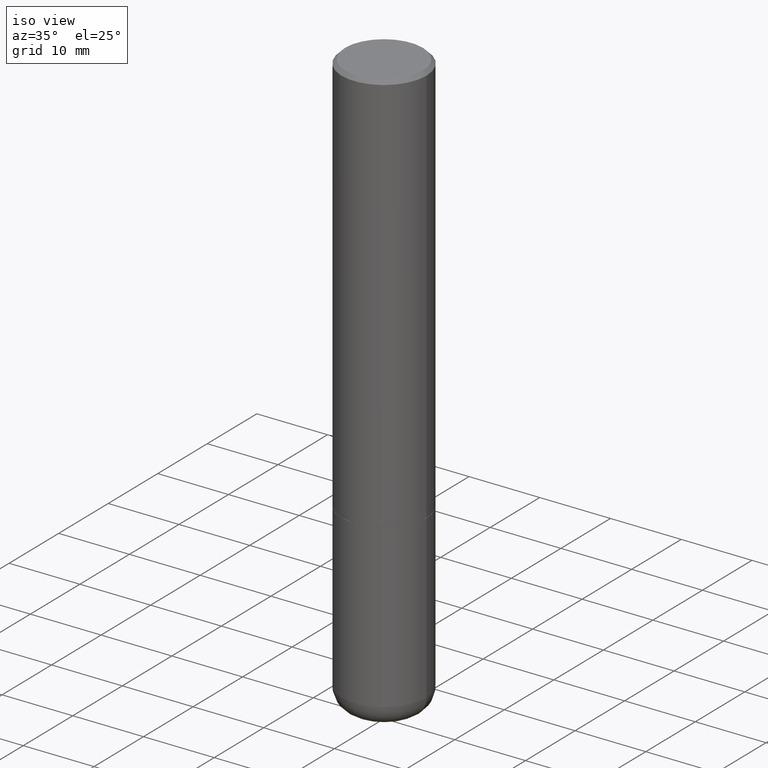
[diagram: clean part render]
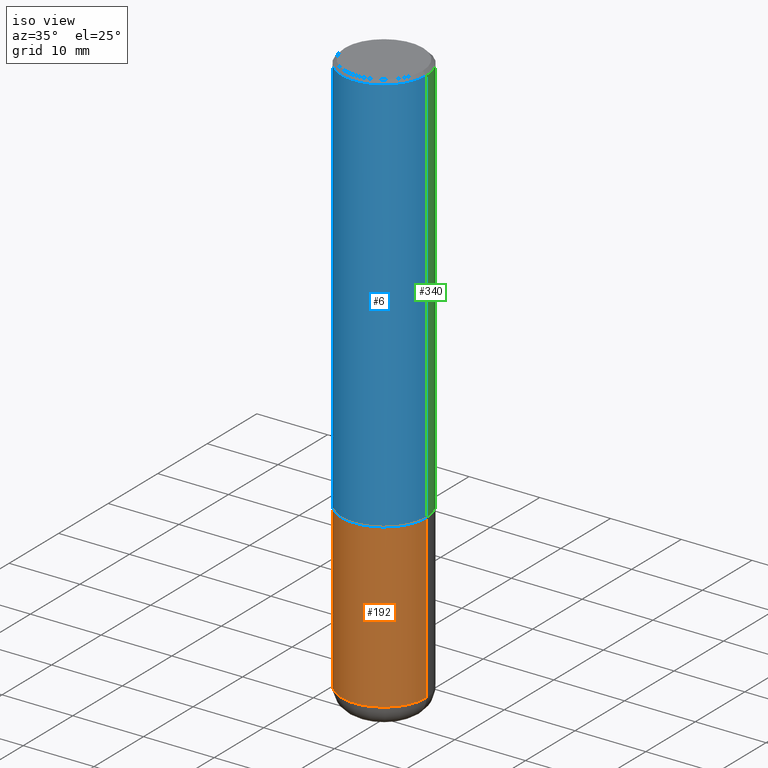
[diagram: same view with three faces highlighted in distinct colors, each labeled with its STEP entity id]
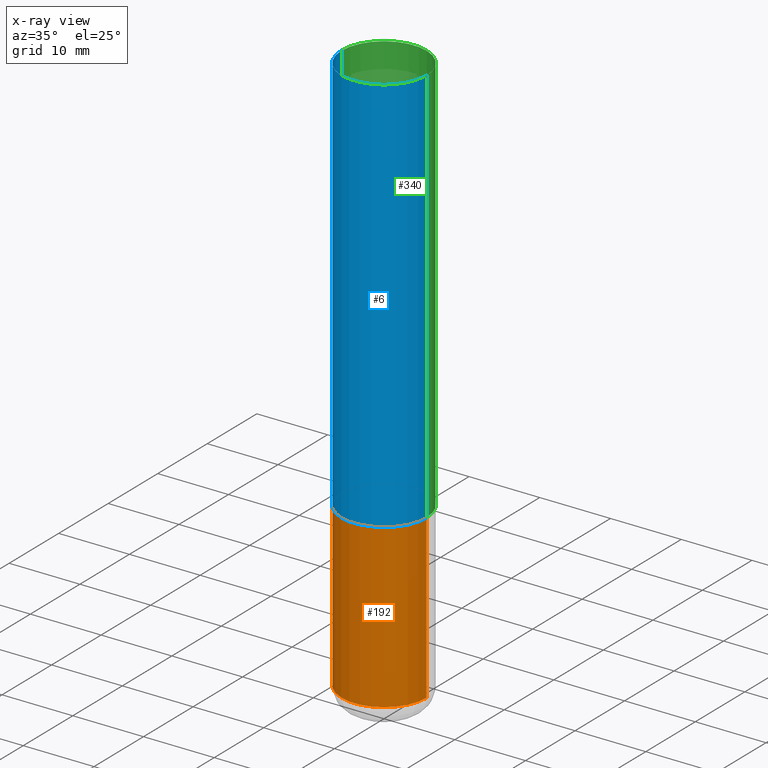
[diagram: x-ray of the same camera — body ghosted, the three highlighted faces saturated]
A machine part, iso view with three faces highlighted in distinct colors.
The next image is the same camera in x-ray (body ghosted, the three faces saturated) — at least one of them is partly hidden behind the body in this view.
Their STEP definitions:

[orange] entity #192 — the highlighted cylindrical surface (partial cylindrical patch) has radius 5.9995 mm, axis along (-0, 0, 1).
#5 = CARTESIAN_POINT ( 'NONE',  ( 0.2362000000000000210, -1.264614540928986883E-14, -3.149600000000000399 ) ) ;
#21 = VECTOR ( 'NONE', #407, 39.37007874015748143 ) ;
#61 = DIRECTION ( 'NONE',  ( -2.445468806185136877E-29, 3.491481338843145188E-15, 1.000000000000000000 ) ) ;
#67 = CYLINDRICAL_SURFACE ( 'NONE', #143, 0.2361999999999999933 ) ;
#75 = CARTESIAN_POINT ( 'NONE',  ( -0.2362000000000000210, -9.318467682955017493E-15, -3.149600000000000399 ) ) ;
#77 = CARTESIAN_POINT ( 'NONE',  ( 5.487876547960065873E-29, -7.835233272497903917E-15, -2.244100000000000428 ) ) ;
#87 = DIRECTION ( 'NONE',  ( -2.445468806185136597E-29, 3.491481338843145583E-15, 1.000000000000000000 ) ) ;
#111 = EDGE_CURVE ( 'NONE', #171, #323, #118, .T. ) ;
#112 = CIRCLE ( 'NONE', #221, 0.2362000000000000210 ) ;
#118 = CIRCLE ( 'NONE', #279, 0.2361999999999999933 ) ;
#131 = VERTEX_POINT ( 'NONE', #75 ) ;
#143 = AXIS2_PLACEMENT_3D ( 'NONE', #197, #329, #215 ) ;
#163 = ORIENTED_EDGE ( 'NONE', *, *, #111, .F. ) ;
#171 = VERTEX_POINT ( 'NONE', #402 ) ;
#174 = ORIENTED_EDGE ( 'NONE', *, *, #309, .T. ) ;
#192 = ADVANCED_FACE ( 'NONE', ( #258 ), #67, .T. ) ;
#197 = CARTESIAN_POINT ( 'NONE',  ( 0.000000000000000000, 0.000000000000000000, 0.000000000000000000 ) ) ;
#215 = DIRECTION ( 'NONE',  ( 1.000000000000000000, -6.982962677686266711E-15, 4.876176775795936353E-29 ) ) ;
#218 = DIRECTION ( 'NONE',  ( -2.445468806185136597E-29, 3.491481338843145583E-15, 1.000000000000000000 ) ) ;
#219 = EDGE_CURVE ( 'NONE', #131, #171, #384, .T. ) ;
#221 = AXIS2_PLACEMENT_3D ( 'NONE', #222, #218, #410 ) ;
#222 = CARTESIAN_POINT ( 'NONE',  ( 7.702248551960706711E-29, -1.099676962482037231E-14, -3.149600000000000399 ) ) ;
#256 = VECTOR ( 'NONE', #61, 39.37007874015748143 ) ;
#258 = FACE_OUTER_BOUND ( 'NONE', #331, .T. ) ;
#267 = ORIENTED_EDGE ( 'NONE', *, *, #285, .T. ) ;
#277 = DIRECTION ( 'NONE',  ( 1.000000000000000000, -6.982962677686269077E-15, 0.000000000000000000 ) ) ;
#279 = AXIS2_PLACEMENT_3D ( 'NONE', #77, #87, #277 ) ;
#284 = CARTESIAN_POINT ( 'NONE',  ( -0.2361999999999999933, 1.678301941865356591E-15, -1.161852468318208757E-29 ) ) ;
#285 = EDGE_CURVE ( 'NONE', #388, #323, #321, .T. ) ;
#309 = EDGE_CURVE ( 'NONE', #131, #388, #112, .T. ) ;
#321 = LINE ( 'NONE', #349, #256 ) ;
#323 = VERTEX_POINT ( 'NONE', #377 ) ;
#329 = DIRECTION ( 'NONE',  ( -2.445468806185136597E-29, 3.491481338843145583E-15, 1.000000000000000000 ) ) ;
#331 = EDGE_LOOP ( 'NONE', ( #355, #174, #267, #163 ) ) ;
#349 = CARTESIAN_POINT ( 'NONE',  ( 0.2361999999999999933, -1.649375784469496131E-15, 1.151752954443000088E-29 ) ) ;
#355 = ORIENTED_EDGE ( 'NONE', *, *, #219, .F. ) ;
#377 = CARTESIAN_POINT ( 'NONE',  ( 0.2361999999999999933, -9.484609056967400443E-15, -2.244100000000000428 ) ) ;
#384 = LINE ( 'NONE', #284, #21 ) ;
#388 = VERTEX_POINT ( 'NONE', #5 ) ;
#402 = CARTESIAN_POINT ( 'NONE',  ( -0.2361999999999999933, -7.737699506793781719E-15, -2.244100000000000428 ) ) ;
#407 = DIRECTION ( 'NONE',  ( -2.445468806185136877E-29, 3.491481338843145188E-15, 1.000000000000000000 ) ) ;
#410 = DIRECTION ( 'NONE',  ( 1.000000000000000000, -6.982962677686264344E-15, 0.000000000000000000 ) ) ;

[blue] entity #6 — the highlighted cylindrical surface (partial cylindrical patch) has radius 5.9995 mm, axis along (-0, 0, 1).
#1 = EDGE_CURVE ( 'NONE', #31, #139, #109, .T. ) ;
#6 = ADVANCED_FACE ( 'NONE', ( #153 ), #406, .T. ) ;
#7 = ORIENTED_EDGE ( 'NONE', *, *, #1, .F. ) ;
#9 = VERTEX_POINT ( 'NONE', #400 ) ;
#27 = CARTESIAN_POINT ( 'NONE',  ( 0.2362000000000002709, -9.481117575628559013E-15, -2.243100000000000094 ) ) ;
#31 = VERTEX_POINT ( 'NONE', #246 ) ;
#34 = DIRECTION ( 'NONE',  ( 1.000000000000000000, -6.982962677686266711E-15, 0.000000000000000000 ) ) ;
#80 = CIRCLE ( 'NONE', #318, 0.2362000000000002709 ) ;
#82 = CARTESIAN_POINT ( 'NONE',  ( -0.2362000000000001321, 1.678301941865357577E-15, -1.161852468318209457E-29 ) ) ;
#109 = LINE ( 'NONE', #82, #415 ) ;
#125 = DIRECTION ( 'NONE',  ( -2.445468806185136597E-29, 3.491481338843145583E-15, 1.000000000000000000 ) ) ;
#139 = VERTEX_POINT ( 'NONE', #207 ) ;
#153 = FACE_OUTER_BOUND ( 'NONE', #172, .T. ) ;
#160 = DIRECTION ( 'NONE',  ( -2.445468806185136597E-29, 3.491481338843145583E-15, 1.000000000000000000 ) ) ;
#162 = CIRCLE ( 'NONE', #223, 0.2361999999999999655 ) ;
#172 = EDGE_LOOP ( 'NONE', ( #7, #379, #193, #227 ) ) ;
#193 = ORIENTED_EDGE ( 'NONE', *, *, #274, .T. ) ;
#207 = CARTESIAN_POINT ( 'NONE',  ( -0.2361999999999999655, 1.579546157692632833E-15, -0.02000000000000005246 ) ) ;
#211 = DIRECTION ( 'NONE',  ( 1.000000000000000000, -6.982962677686266711E-15, 4.876176775795936353E-29 ) ) ;
#223 = AXIS2_PLACEMENT_3D ( 'NONE', #322, #160, #34 ) ;
#224 = LINE ( 'NONE', #381, #264 ) ;
#227 = ORIENTED_EDGE ( 'NONE', *, *, #343, .F. ) ;
#246 = CARTESIAN_POINT ( 'NONE',  ( -0.2362000000000002986, -2.272483767102600582E-15, -2.243100000000000094 ) ) ;
#249 = CARTESIAN_POINT ( 'NONE',  ( 0.000000000000000000, 0.000000000000000000, 0.000000000000000000 ) ) ;
#250 = AXIS2_PLACEMENT_3D ( 'NONE', #249, #303, #211 ) ;
#255 = CARTESIAN_POINT ( 'NONE',  ( 5.485431079153880270E-29, -7.831741791159060910E-15, -2.243100000000000094 ) ) ;
#264 = VECTOR ( 'NONE', #414, 39.37007874015748143 ) ;
#274 = EDGE_CURVE ( 'NONE', #296, #9, #224, .T. ) ;
#286 = EDGE_CURVE ( 'NONE', #31, #296, #80, .T. ) ;
#296 = VERTEX_POINT ( 'NONE', #27 ) ;
#303 = DIRECTION ( 'NONE',  ( -2.445468806185136597E-29, 3.491481338843145583E-15, 1.000000000000000000 ) ) ;
#312 = DIRECTION ( 'NONE',  ( -2.445468806185136877E-29, 3.491481338843145188E-15, 1.000000000000000000 ) ) ;
#318 = AXIS2_PLACEMENT_3D ( 'NONE', #255, #125, #378 ) ;
#322 = CARTESIAN_POINT ( 'NONE',  ( 4.890937612370285420E-31, -6.982962677686308865E-17, -0.02000000000000005246 ) ) ;
#343 = EDGE_CURVE ( 'NONE', #139, #9, #162, .T. ) ;
#378 = DIRECTION ( 'NONE',  ( 1.000000000000000000, -6.982962677686269077E-15, 0.000000000000000000 ) ) ;
#379 = ORIENTED_EDGE ( 'NONE', *, *, #286, .T. ) ;
#381 = CARTESIAN_POINT ( 'NONE',  ( 0.2362000000000001321, -1.649375784469497117E-15, 1.151752954443000789E-29 ) ) ;
#400 = CARTESIAN_POINT ( 'NONE',  ( 0.2361999999999999655, -1.690279253850498574E-15, -0.02000000000000005246 ) ) ;
#406 = CYLINDRICAL_SURFACE ( 'NONE', #250, 0.2362000000000001321 ) ;
#414 = DIRECTION ( 'NONE',  ( -2.445468806185136877E-29, 3.491481338843145188E-15, 1.000000000000000000 ) ) ;
#415 = VECTOR ( 'NONE', #312, 39.37007874015748143 ) ;

[green] entity #340 — the highlighted cylindrical surface (partial cylindrical patch) has radius 5.9995 mm, axis along (-0, 0, 1).
#1 = EDGE_CURVE ( 'NONE', #31, #139, #109, .T. ) ;
#2 = EDGE_LOOP ( 'NONE', ( #64, #72, #201, #124 ) ) ;
#9 = VERTEX_POINT ( 'NONE', #400 ) ;
#24 = CYLINDRICAL_SURFACE ( 'NONE', #326, 0.2362000000000001321 ) ;
#27 = CARTESIAN_POINT ( 'NONE',  ( 0.2362000000000002709, -9.481117575628559013E-15, -2.243100000000000094 ) ) ;
#30 = CARTESIAN_POINT ( 'NONE',  ( 0.000000000000000000, 0.000000000000000000, 0.000000000000000000 ) ) ;
#31 = VERTEX_POINT ( 'NONE', #246 ) ;
#35 = EDGE_CURVE ( 'NONE', #296, #31, #66, .T. ) ;
#52 = DIRECTION ( 'NONE',  ( 1.000000000000000000, -6.982962677686269077E-15, 0.000000000000000000 ) ) ;
#60 = AXIS2_PLACEMENT_3D ( 'NONE', #245, #372, #276 ) ;
#64 = ORIENTED_EDGE ( 'NONE', *, *, #35, .T. ) ;
#66 = CIRCLE ( 'NONE', #338, 0.2362000000000002709 ) ;
#72 = ORIENTED_EDGE ( 'NONE', *, *, #1, .T. ) ;
#82 = CARTESIAN_POINT ( 'NONE',  ( -0.2362000000000001321, 1.678301941865357577E-15, -1.161852468318209457E-29 ) ) ;
#109 = LINE ( 'NONE', #82, #415 ) ;
#124 = ORIENTED_EDGE ( 'NONE', *, *, #274, .F. ) ;
#139 = VERTEX_POINT ( 'NONE', #207 ) ;
#147 = CARTESIAN_POINT ( 'NONE',  ( 5.485431079153880270E-29, -7.831741791159060910E-15, -2.243100000000000094 ) ) ;
#184 = EDGE_CURVE ( 'NONE', #9, #139, #370, .T. ) ;
#201 = ORIENTED_EDGE ( 'NONE', *, *, #184, .F. ) ;
#207 = CARTESIAN_POINT ( 'NONE',  ( -0.2361999999999999655, 1.579546157692632833E-15, -0.02000000000000005246 ) ) ;
#224 = LINE ( 'NONE', #381, #264 ) ;
#245 = CARTESIAN_POINT ( 'NONE',  ( 4.890937612370285420E-31, -6.982962677686308865E-17, -0.02000000000000005246 ) ) ;
#246 = CARTESIAN_POINT ( 'NONE',  ( -0.2362000000000002986, -2.272483767102600582E-15, -2.243100000000000094 ) ) ;
#264 = VECTOR ( 'NONE', #414, 39.37007874015748143 ) ;
#274 = EDGE_CURVE ( 'NONE', #296, #9, #224, .T. ) ;
#276 = DIRECTION ( 'NONE',  ( 1.000000000000000000, -6.982962677686266711E-15, 0.000000000000000000 ) ) ;
#288 = DIRECTION ( 'NONE',  ( -2.445468806185136597E-29, 3.491481338843145583E-15, 1.000000000000000000 ) ) ;
#296 = VERTEX_POINT ( 'NONE', #27 ) ;
#312 = DIRECTION ( 'NONE',  ( -2.445468806185136877E-29, 3.491481338843145188E-15, 1.000000000000000000 ) ) ;
#326 = AXIS2_PLACEMENT_3D ( 'NONE', #30, #288, #345 ) ;
#338 = AXIS2_PLACEMENT_3D ( 'NONE', #147, #341, #52 ) ;
#340 = ADVANCED_FACE ( 'NONE', ( #344 ), #24, .T. ) ;
#341 = DIRECTION ( 'NONE',  ( -2.445468806185136597E-29, 3.491481338843145583E-15, 1.000000000000000000 ) ) ;
#344 = FACE_OUTER_BOUND ( 'NONE', #2, .T. ) ;
#345 = DIRECTION ( 'NONE',  ( 1.000000000000000000, -6.982962677686266711E-15, 4.876176775795936353E-29 ) ) ;
#370 = CIRCLE ( 'NONE', #60, 0.2361999999999999655 ) ;
#372 = DIRECTION ( 'NONE',  ( -2.445468806185136597E-29, 3.491481338843145583E-15, 1.000000000000000000 ) ) ;
#381 = CARTESIAN_POINT ( 'NONE',  ( 0.2362000000000001321, -1.649375784469497117E-15, 1.151752954443000789E-29 ) ) ;
#400 = CARTESIAN_POINT ( 'NONE',  ( 0.2361999999999999655, -1.690279253850498574E-15, -0.02000000000000005246 ) ) ;
#414 = DIRECTION ( 'NONE',  ( -2.445468806185136877E-29, 3.491481338843145188E-15, 1.000000000000000000 ) ) ;
#415 = VECTOR ( 'NONE', #312, 39.37007874015748143 ) ;